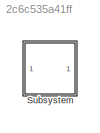
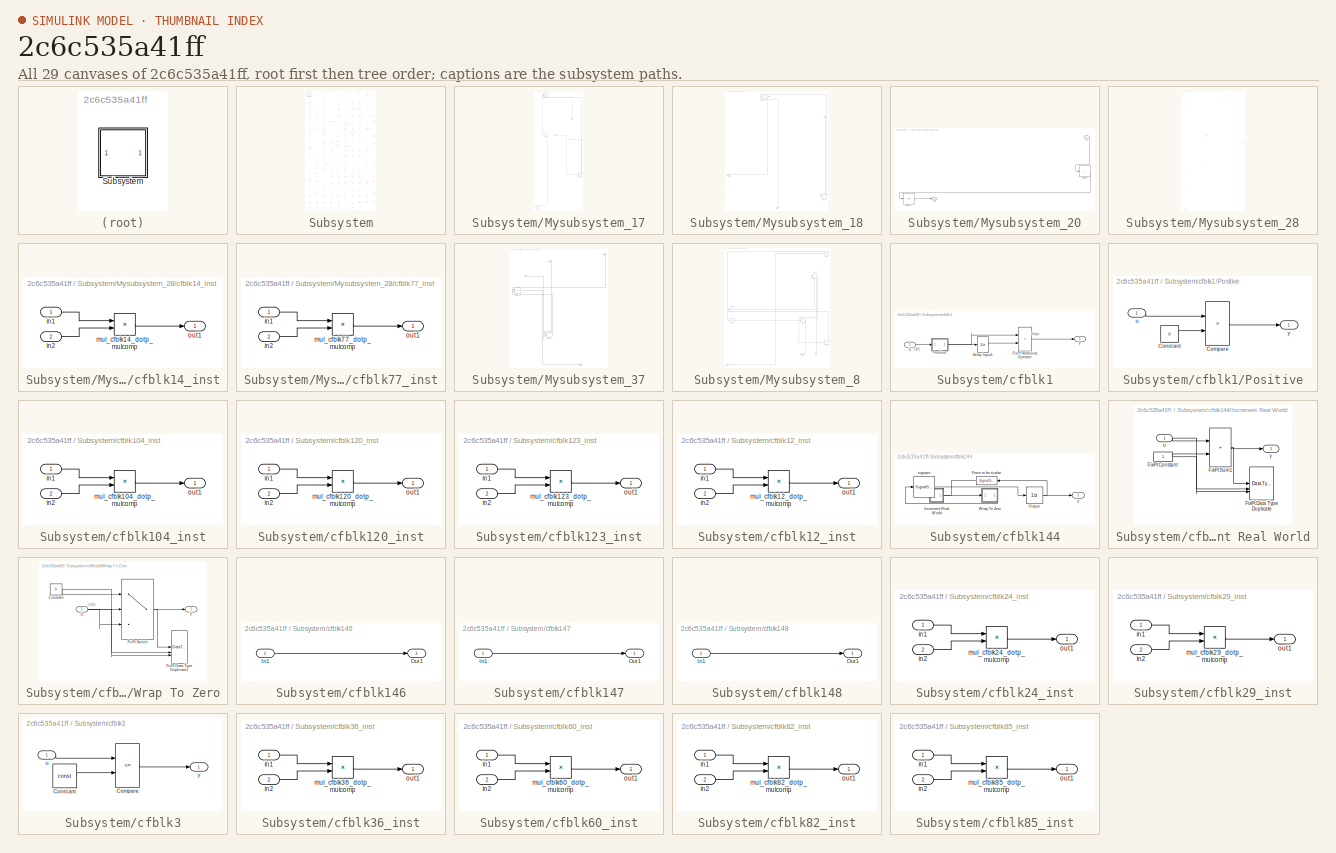
[diagram: thumbnail index - all 29 canvases of the model, root first then tree order]
MODEL slx_2c6c535a41ff
KIND model
CONFIG AbsTol = auto
CONFIG EnableMultiTasking = off
CONFIG FixedStep = auto
CONFIG MaxStep = auto
CONFIG MinStep = auto
CONFIG RelTol = 1e-3
CONFIG SampleTimeConstraint = Unconstrained
CONFIG SolverName = VariableStepAuto
CONFIG StartTime = 0.0
CONFIG StopTime = 10.0
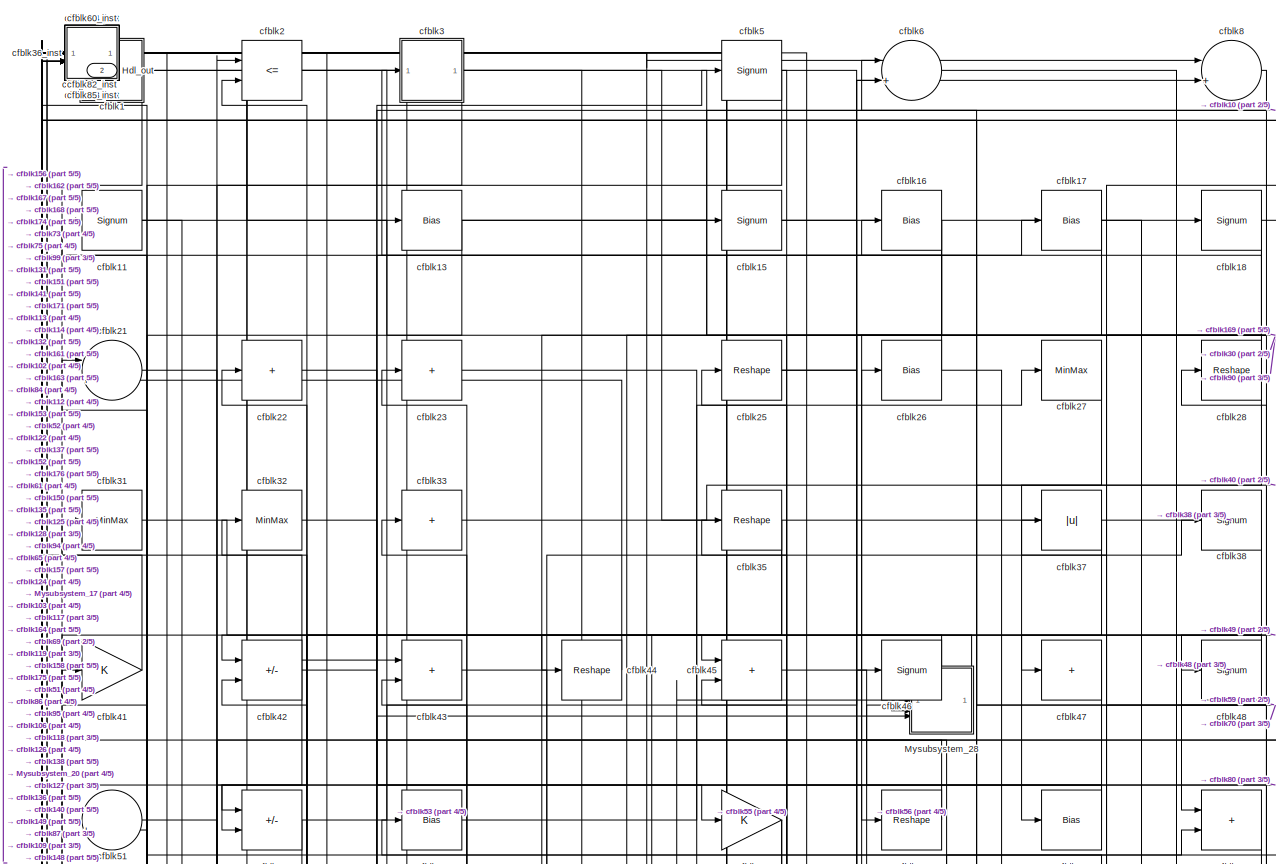
[diagram: Subsystem - part 1/5, full width, top band]
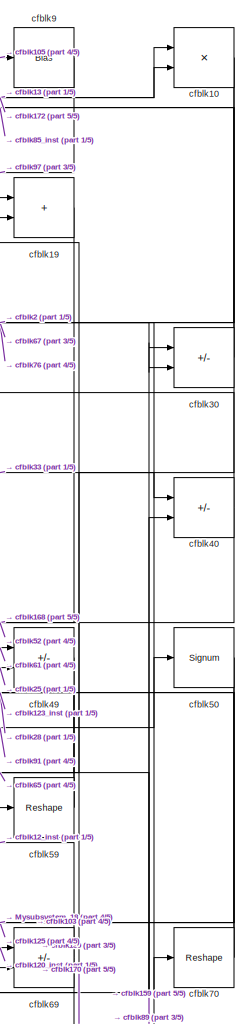
[diagram: Subsystem - part 2/5, top right region]
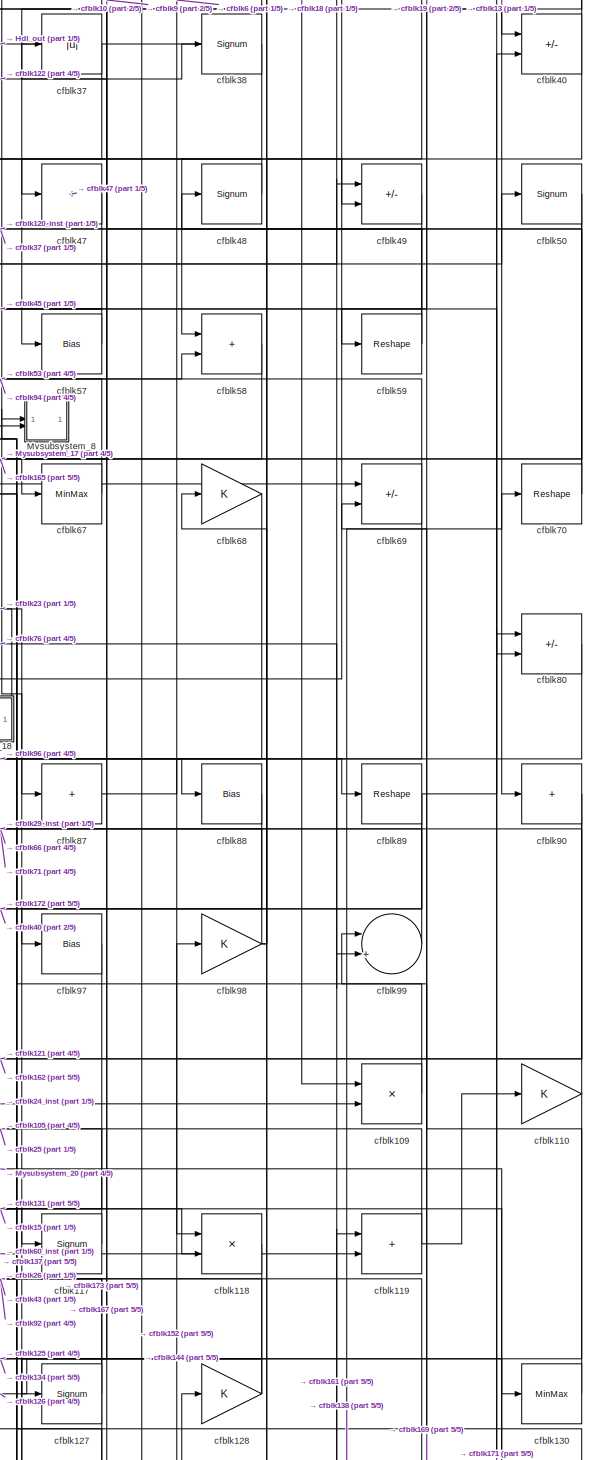
[diagram: Subsystem - part 3/5, middle right region]
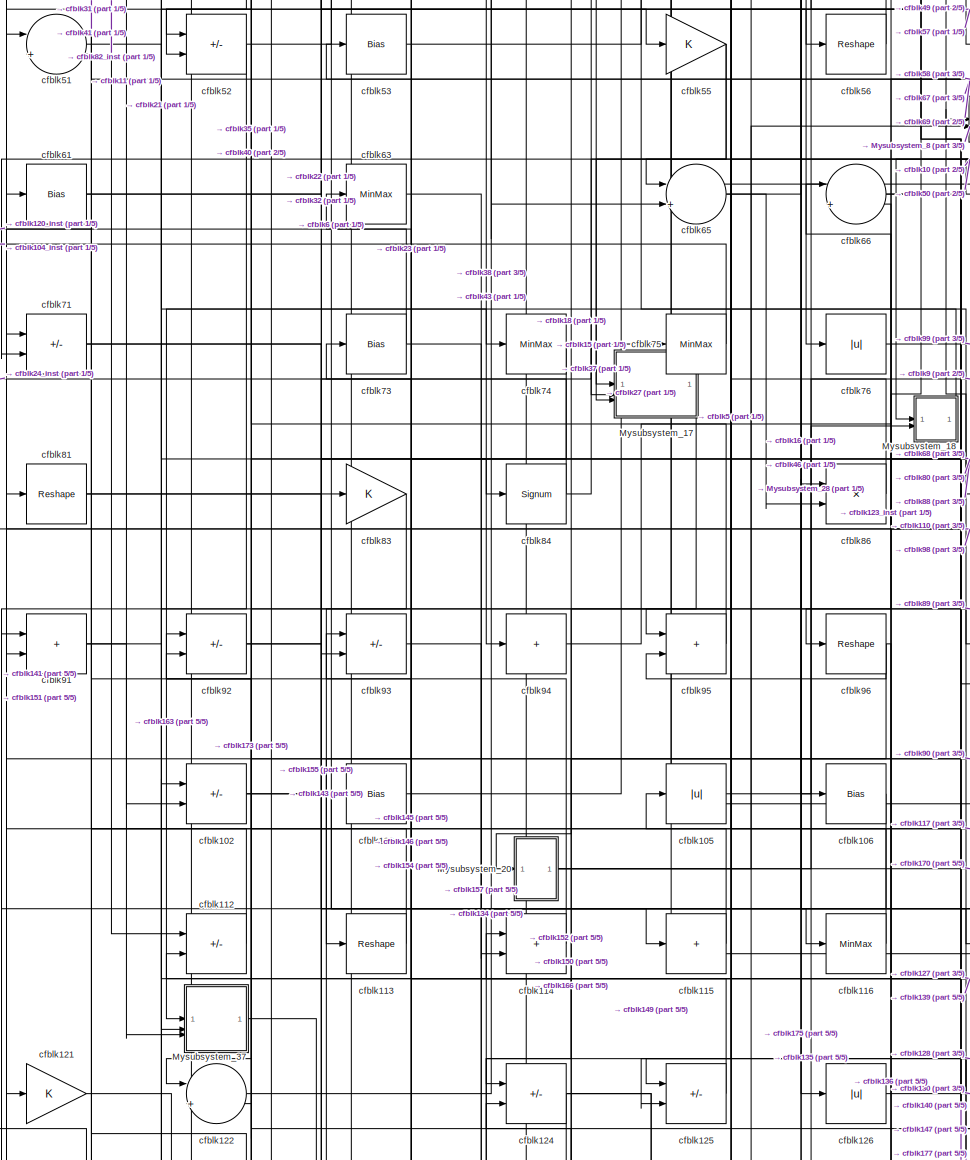
[diagram: Subsystem - part 4/5, central region]
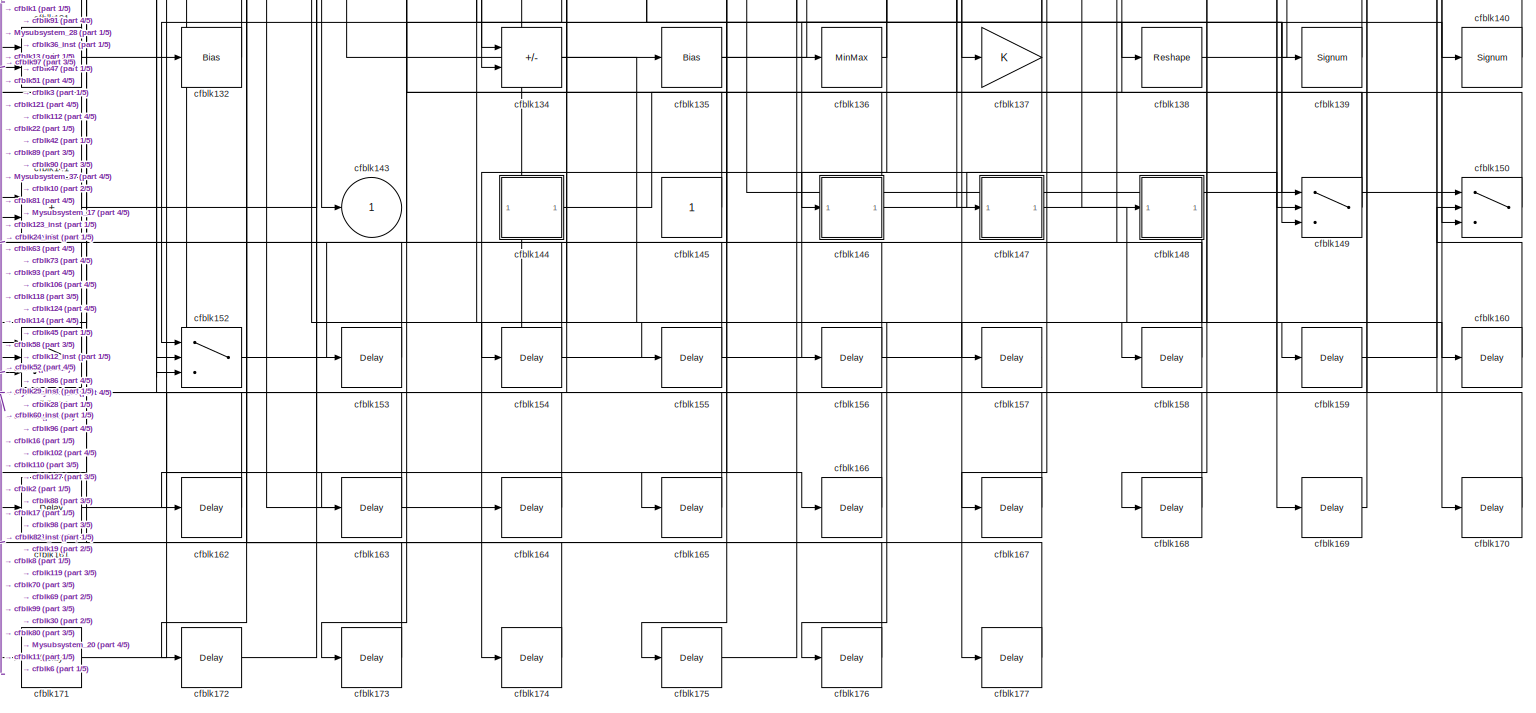
[diagram: Subsystem - part 5/5, full width, bottom band]
BLOCK [SubSystem] Subsystem
BLOCK [Outport] Subsystem/Hdl_out
  OutDataTypeStr = uint8
  Port = 2
  SampleTime = 1
BLOCK [SubSystem] Subsystem/Mysubsystem_17
BLOCK [Inport] Subsystem/Mysubsystem_17/In1
  OutDataTypeStr = uint8
  PortDimensions = 1
  SampleTime = 1
BLOCK [Inport] Subsystem/Mysubsystem_17/In2
  OutDataTypeStr = uint8
  Port = 2
  PortDimensions = 1
  SampleTime = 1
BLOCK [Inport] Subsystem/Mysubsystem_17/In3
  OutDataTypeStr = uint8
  Port = 3
  PortDimensions = 1
  SampleTime = 1
BLOCK [Product] Subsystem/Mysubsystem_17/cfblk108
  Inputs = */
  RndMeth = Zero
  SaturateOnIntegerOverflow = on
BLOCK [Outport] Subsystem/Mysubsystem_17/cfblk143
  SampleTime = 1
  VectorParamsAs1DForOutWhenUnconnected = off
BLOCK [Sum] Subsystem/Mysubsystem_17/cfblk4
  IconShape = rectangular
  Inputs = +-
BLOCK [Abs] Subsystem/Mysubsystem_17/cfblk54
  SaturateOnIntegerOverflow = off
BLOCK [SubSystem] Subsystem/Mysubsystem_18
BLOCK [Inport] Subsystem/Mysubsystem_18/In1
  OutDataTypeStr = uint8
  PortDimensions = 1
  SampleTime = 1
BLOCK [Inport] Subsystem/Mysubsystem_18/In2
  OutDataTypeStr = uint8
  Port = 2
  PortDimensions = 1
  SampleTime = 1
BLOCK [Outport] Subsystem/Mysubsystem_18/Out1
  SampleTime = 1
BLOCK [Sum] Subsystem/Mysubsystem_18/cfblk129
  IconShape = rectangular
  Inputs = +
BLOCK [Sum] Subsystem/Mysubsystem_18/cfblk34
  Inputs = |++
BLOCK [SubSystem] Subsystem/Mysubsystem_20
BLOCK [Inport] Subsystem/Mysubsystem_20/In1
  OutDataTypeStr = uint8
  PortDimensions = 1
  SampleTime = 1
BLOCK [Outport] Subsystem/Mysubsystem_20/Out1
  SampleTime = 1
BLOCK [Sum] Subsystem/Mysubsystem_20/cfblk107
  IconShape = rectangular
  Inputs = +
BLOCK [Abs] Subsystem/Mysubsystem_20/cfblk111
  SaturateOnIntegerOverflow = off
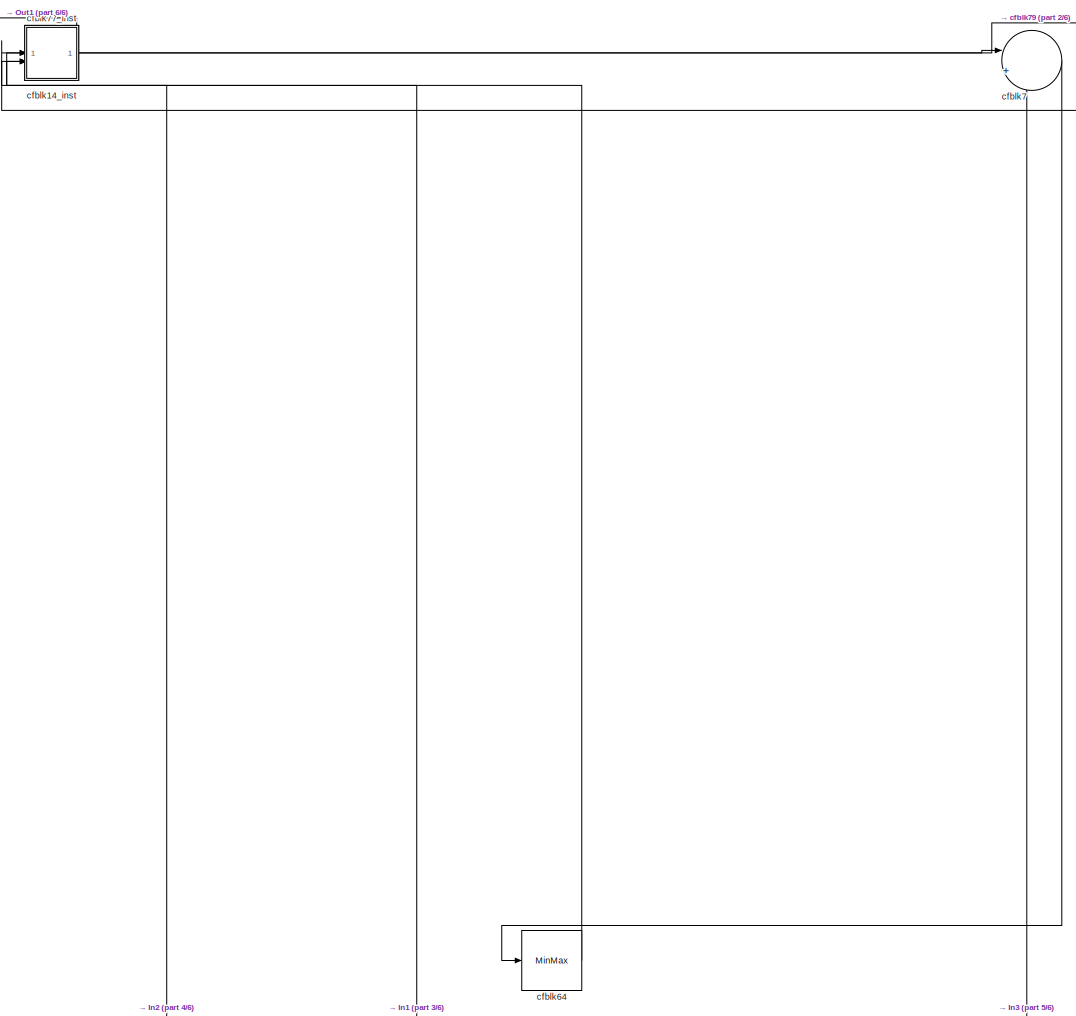
[diagram: Subsystem/Mysubsystem_28 - part 1/6, full width, top band]
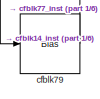
[diagram: Subsystem/Mysubsystem_28 - part 2/6, middle right region]
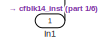
[diagram: Subsystem/Mysubsystem_28 - part 3/6, middle left region]
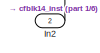
[diagram: Subsystem/Mysubsystem_28 - part 4/6, middle left region]
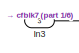
[diagram: Subsystem/Mysubsystem_28 - part 5/6, bottom left region]
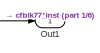
[diagram: Subsystem/Mysubsystem_28 - part 6/6, bottom left region]
BLOCK [SubSystem] Subsystem/Mysubsystem_28
BLOCK [Inport] Subsystem/Mysubsystem_28/In1
  OutDataTypeStr = uint8
  PortDimensions = 1
  SampleTime = 1
BLOCK [Inport] Subsystem/Mysubsystem_28/In2
  OutDataTypeStr = uint8
  Port = 2
  PortDimensions = 1
  SampleTime = 1
BLOCK [Inport] Subsystem/Mysubsystem_28/In3
  OutDataTypeStr = uint8
  Port = 3
  PortDimensions = 1
  SampleTime = 1
BLOCK [Outport] Subsystem/Mysubsystem_28/Out1
  SampleTime = 1
BLOCK [SubSystem] Subsystem/Mysubsystem_28/cfblk14_inst
BLOCK [Inport] Subsystem/Mysubsystem_28/cfblk14_inst/in1
  OutDataTypeStr = uint8
  SampleTime = 1
BLOCK [Inport] Subsystem/Mysubsystem_28/cfblk14_inst/in2
  OutDataTypeStr = uint8
  Port = 2
  SampleTime = 1
BLOCK [Product] Subsystem/Mysubsystem_28/cfblk14_inst/mul_cfblk14_dotp_mulcomp
  Inputs = **
  OutDataTypeStr = uint16
  SampleTime = 1
BLOCK [Outport] Subsystem/Mysubsystem_28/cfblk14_inst/out1
  OutDataTypeStr = uint16
  SampleTime = 1
BLOCK [MinMax] Subsystem/Mysubsystem_28/cfblk64
BLOCK [Sum] Subsystem/Mysubsystem_28/cfblk7
  Inputs = |++
BLOCK [SubSystem] Subsystem/Mysubsystem_28/cfblk77_inst
BLOCK [Inport] Subsystem/Mysubsystem_28/cfblk77_inst/in1
  OutDataTypeStr = uint16
  SampleTime = 1
BLOCK [Inport] Subsystem/Mysubsystem_28/cfblk77_inst/in2
  OutDataTypeStr = uint16
  Port = 2
  SampleTime = 1
BLOCK [Product] Subsystem/Mysubsystem_28/cfblk77_inst/mul_cfblk77_dotp_mulcomp
  Inputs = **
  OutDataTypeStr = uint32
  SampleTime = 1
BLOCK [Outport] Subsystem/Mysubsystem_28/cfblk77_inst/out1
  OutDataTypeStr = uint32
  SampleTime = 1
BLOCK [Bias] Subsystem/Mysubsystem_28/cfblk79
  Bias = 0.0
  SaturateOnIntegerOverflow = off
BLOCK [SubSystem] Subsystem/Mysubsystem_37
BLOCK [Inport] Subsystem/Mysubsystem_37/In1
  OutDataTypeStr = uint8
  PortDimensions = 1
  SampleTime = 1
BLOCK [Inport] Subsystem/Mysubsystem_37/In2
  OutDataTypeStr = uint8
  Port = 2
  PortDimensions = 1
  SampleTime = 1
BLOCK [Inport] Subsystem/Mysubsystem_37/In3
  OutDataTypeStr = uint8
  Port = 3
  PortDimensions = 1
  SampleTime = 1
BLOCK [Outport] Subsystem/Mysubsystem_37/Out1
  SampleTime = 1
BLOCK [Sum] Subsystem/Mysubsystem_37/cfblk101
  IconShape = rectangular
  Inputs = +-
BLOCK [Sum] Subsystem/Mysubsystem_37/cfblk133
  Inputs = |++
BLOCK [SubSystem] Subsystem/Mysubsystem_8
BLOCK [Inport] Subsystem/Mysubsystem_8/In1
  OutDataTypeStr = uint8
  PortDimensions = 1
  SampleTime = 1
BLOCK [Inport] Subsystem/Mysubsystem_8/In2
  OutDataTypeStr = uint8
  Port = 2
  PortDimensions = 1
  SampleTime = 1
BLOCK [Outport] Subsystem/Mysubsystem_8/Out1
  SampleTime = 1
BLOCK [Abs] Subsystem/Mysubsystem_8/cfblk100
  SaturateOnIntegerOverflow = off
BLOCK [Abs] Subsystem/Mysubsystem_8/cfblk20
  SaturateOnIntegerOverflow = off
BLOCK [Sum] Subsystem/Mysubsystem_8/cfblk39
  Inputs = |++
BLOCK [Abs] Subsystem/Mysubsystem_8/cfblk62
  SaturateOnIntegerOverflow = off
BLOCK [Bias] Subsystem/Mysubsystem_8/cfblk72
  Bias = 0.0
  SaturateOnIntegerOverflow = off
BLOCK [Sum] Subsystem/Mysubsystem_8/cfblk78
  IconShape = rectangular
  Inputs = +
BLOCK [SubSystem] Subsystem/cfblk1
BLOCK [UnitDelay] Subsystem/cfblk1/Delay Input1
  Description = Store in Global RAM
  DisableCoverage = on
  HasFrameUpgradeWarning = on
  InitialCondition = vinit
  SampleTime = -1
BLOCK [RelationalOperator] Subsystem/cfblk1/FixPt Relational Operator
  InputSameDT = off
  Operator = >
  OutDataTypeStr = fixdt(0, 8)
  ZeroCross = off
BLOCK [SubSystem] Subsystem/cfblk1/Positive
BLOCK [RelationalOperator] Subsystem/cfblk1/Positive/Compare
  Operator = >
  OutDataTypeStr = boolean
  ZeroCross = off
BLOCK [Constant] Subsystem/cfblk1/Positive/Constant
  DisableCoverage = on
  OutDataTypeStr = Inherit: Inherit via back propagation
  PreserveConstantTs = on
  SampleTime = -1
  Value = 0
BLOCK [Inport] Subsystem/cfblk1/Positive/u
  OutDataTypeStr = uint8
  SampleTime = 1
BLOCK [Outport] Subsystem/cfblk1/Positive/y
  SampleTime = 1
BLOCK [Inport] Subsystem/cfblk1/U
  OutDataTypeStr = uint8
  SampleTime = 1
BLOCK [Outport] Subsystem/cfblk1/Y
  SampleTime = 1
BLOCK [Product] Subsystem/cfblk10
  Inputs = */
  OutDataTypeStr = uint8
  RndMeth = Zero
  SaturateOnIntegerOverflow = on
BLOCK [Sum] Subsystem/cfblk102
  IconShape = rectangular
  Inputs = +-
  OutDataTypeStr = uint8
BLOCK [Bias] Subsystem/cfblk103
  Bias = 0.0
  SaturateOnIntegerOverflow = off
BLOCK [SubSystem] Subsystem/cfblk104_inst
BLOCK [Inport] Subsystem/cfblk104_inst/in1
  OutDataTypeStr = uint8
  SampleTime = 1
BLOCK [Inport] Subsystem/cfblk104_inst/in2
  OutDataTypeStr = uint8
  Port = 2
  SampleTime = 1
BLOCK [Product] Subsystem/cfblk104_inst/mul_cfblk104_dotp_mulcomp
  Inputs = **
  OutDataTypeStr = uint8
  SampleTime = 1
BLOCK [Outport] Subsystem/cfblk104_inst/out1
  OutDataTypeStr = uint8
  SampleTime = 1
BLOCK [Abs] Subsystem/cfblk105
  OutDataTypeStr = uint8
  SaturateOnIntegerOverflow = off
BLOCK [Bias] Subsystem/cfblk106
  Bias = 0.0
  SaturateOnIntegerOverflow = off
BLOCK [Product] Subsystem/cfblk109
  Inputs = */
  OutDataTypeStr = uint8
  RndMeth = Zero
  SaturateOnIntegerOverflow = on
BLOCK [Signum] Subsystem/cfblk11
BLOCK [Gain] Subsystem/cfblk110
  OutDataTypeStr = uint8
BLOCK [Sum] Subsystem/cfblk112
  IconShape = rectangular
  Inputs = +-
  OutDataTypeStr = uint8
BLOCK [Reshape] Subsystem/cfblk113
BLOCK [Sum] Subsystem/cfblk114
  IconShape = rectangular
  OutDataTypeStr = uint8
BLOCK [Sum] Subsystem/cfblk115
  IconShape = rectangular
  Inputs = +
  OutDataTypeStr = uint8
BLOCK [MinMax] Subsystem/cfblk116
  OutDataTypeStr = uint8
BLOCK [Signum] Subsystem/cfblk117
BLOCK [Product] Subsystem/cfblk118
  Inputs = */
  OutDataTypeStr = uint8
  RndMeth = Zero
  SaturateOnIntegerOverflow = on
BLOCK [Sum] Subsystem/cfblk119
  IconShape = rectangular
  OutDataTypeStr = uint8
BLOCK [SubSystem] Subsystem/cfblk120_inst
BLOCK [Inport] Subsystem/cfblk120_inst/in1
  OutDataTypeStr = uint8
  SampleTime = 1
BLOCK [Inport] Subsystem/cfblk120_inst/in2
  OutDataTypeStr = uint8
  Port = 2
  SampleTime = 1
BLOCK [Product] Subsystem/cfblk120_inst/mul_cfblk120_dotp_mulcomp
  Inputs = **
  OutDataTypeStr = uint8
  SampleTime = 1
BLOCK [Outport] Subsystem/cfblk120_inst/out1
  OutDataTypeStr = uint8
  SampleTime = 1
BLOCK [Gain] Subsystem/cfblk121
  OutDataTypeStr = uint8
BLOCK [Sum] Subsystem/cfblk122
  Inputs = |++
  OutDataTypeStr = uint8
BLOCK [SubSystem] Subsystem/cfblk123_inst
BLOCK [Inport] Subsystem/cfblk123_inst/in1
  OutDataTypeStr = uint8
  SampleTime = 1
BLOCK [Inport] Subsystem/cfblk123_inst/in2
  OutDataTypeStr = uint8
  Port = 2
  SampleTime = 1
BLOCK [Product] Subsystem/cfblk123_inst/mul_cfblk123_dotp_mulcomp
  Inputs = **
  OutDataTypeStr = uint8
  SampleTime = 1
BLOCK [Outport] Subsystem/cfblk123_inst/out1
  OutDataTypeStr = uint8
  SampleTime = 1
BLOCK [Sum] Subsystem/cfblk124
  IconShape = rectangular
  Inputs = +-
  OutDataTypeStr = uint8
BLOCK [Sum] Subsystem/cfblk125
  IconShape = rectangular
  Inputs = +-
  OutDataTypeStr = uint8
BLOCK [Abs] Subsystem/cfblk126
  OutDataTypeStr = uint8
  SaturateOnIntegerOverflow = off
BLOCK [Signum] Subsystem/cfblk127
BLOCK [Gain] Subsystem/cfblk128
  OutDataTypeStr = uint8
BLOCK [SubSystem] Subsystem/cfblk12_inst
BLOCK [Inport] Subsystem/cfblk12_inst/in1
  OutDataTypeStr = uint8
  SampleTime = 1
BLOCK [Inport] Subsystem/cfblk12_inst/in2
  OutDataTypeStr = uint8
  Port = 2
  SampleTime = 1
BLOCK [Product] Subsystem/cfblk12_inst/mul_cfblk12_dotp_mulcomp
  Inputs = **
  OutDataTypeStr = uint8
  SampleTime = 1
BLOCK [Outport] Subsystem/cfblk12_inst/out1
  OutDataTypeStr = uint8
  SampleTime = 1
BLOCK [Bias] Subsystem/cfblk13
  Bias = 0.0
  SaturateOnIntegerOverflow = off
BLOCK [MinMax] Subsystem/cfblk130
  OutDataTypeStr = uint8
BLOCK [Sum] Subsystem/cfblk131
  IconShape = rectangular
  Inputs = +-
  OutDataTypeStr = uint8
BLOCK [Bias] Subsystem/cfblk132
  Bias = 0.0
  SaturateOnIntegerOverflow = off
BLOCK [Sum] Subsystem/cfblk134
  IconShape = rectangular
  Inputs = +-
  OutDataTypeStr = uint8
BLOCK [Bias] Subsystem/cfblk135
  Bias = 0.0
  SaturateOnIntegerOverflow = off
BLOCK [MinMax] Subsystem/cfblk136
  OutDataTypeStr = uint8
BLOCK [Gain] Subsystem/cfblk137
  OutDataTypeStr = uint8
BLOCK [Reshape] Subsystem/cfblk138
BLOCK [Signum] Subsystem/cfblk139
BLOCK [Signum] Subsystem/cfblk140
BLOCK [Sum] Subsystem/cfblk141
  IconShape = rectangular
  OutDataTypeStr = uint8
BLOCK [Outport] Subsystem/cfblk143
  OutDataTypeStr = uint8
  SampleTime = 1
  VectorParamsAs1DForOutWhenUnconnected = off
BLOCK [SubSystem] Subsystem/cfblk144
BLOCK [SignalSpecification] Subsystem/cfblk144/Force to be scalar
  Dimensions = 1
  DisableCoverage = on
BLOCK [SubSystem] Subsystem/cfblk144/Increment Real World
BLOCK [Constant] Subsystem/cfblk144/Increment Real World/FixPt Constant
  DisableCoverage = on
  OutDataTypeStr = Inherit: Inherit via back propagation
  SampleTime = -1
BLOCK [DataTypeDuplicate] Subsystem/cfblk144/Increment Real World/FixPt Data Type Duplicate
  DisableCoverage = on
  NumInputPorts = 3
BLOCK [Sum] Subsystem/cfblk144/Increment Real World/FixPt Sum1
  IconShape = rectangular
  InputSameDT = on
  LockScale = on
  OutDataTypeStr = Inherit: Inherit via back propagation
BLOCK [Inport] Subsystem/cfblk144/Increment Real World/u
  OutDataTypeStr = uint8
  SampleTime = 1
BLOCK [Outport] Subsystem/cfblk144/Increment Real World/y
  SampleTime = 1
BLOCK [UnitDelay] Subsystem/cfblk144/Output
  HasFrameUpgradeWarning = on
  InitialCondition = 0.0
  SampleTime = tsamp
BLOCK [SubSystem] Subsystem/cfblk144/Wrap To Zero
BLOCK [Constant] Subsystem/cfblk144/Wrap To Zero/Constant
  DisableCoverage = on
  OutDataTypeStr = Inherit: Inherit via back propagation
  SampleTime = -1
  Value = 0
BLOCK [DataTypeDuplicate] Subsystem/cfblk144/Wrap To Zero/FixPt Data Type Duplicate1
  DisableCoverage = on
  NumInputPorts = 3
BLOCK [Switch] Subsystem/cfblk144/Wrap To Zero/FixPt Switch
  Criteria = u2 > Threshold
  InputSameDT = off
  OutDataTypeStr = Inherit: Inherit via back propagation
  SaturateOnIntegerOverflow = off
  Threshold = Threshold
  ZeroCross = off
BLOCK [Inport] Subsystem/cfblk144/Wrap To Zero/U
  OutDataTypeStr = uint8
  SampleTime = 1
BLOCK [Outport] Subsystem/cfblk144/Wrap To Zero/Y
  SampleTime = 1
BLOCK [SignalSpecification] Subsystem/cfblk144/sigspec
  Dimensions = 1
  OutDataTypeStr = uint8
BLOCK [Outport] Subsystem/cfblk144/y
  SampleTime = 1
BLOCK [Constant] Subsystem/cfblk145
  OutDataTypeStr = uint8
  SampleTime = -1
BLOCK [SubSystem] Subsystem/cfblk146
BLOCK [Inport] Subsystem/cfblk146/In1
  OutDataTypeStr = uint8
  PortDimensions = 1
  SampleTime = 1
BLOCK [Outport] Subsystem/cfblk146/Out1
  SampleTime = 1
BLOCK [SubSystem] Subsystem/cfblk147
BLOCK [Inport] Subsystem/cfblk147/In1
  OutDataTypeStr = uint8
  PortDimensions = 1
  SampleTime = 1
BLOCK [Outport] Subsystem/cfblk147/Out1
  SampleTime = 1
BLOCK [SubSystem] Subsystem/cfblk148
BLOCK [Inport] Subsystem/cfblk148/In1
  OutDataTypeStr = uint8
  PortDimensions = 1
  SampleTime = 1
BLOCK [Outport] Subsystem/cfblk148/Out1
  SampleTime = 1
BLOCK [Switch] Subsystem/cfblk149
  InputSameDT = off
  OutDataTypeStr = uint8
  SaturateOnIntegerOverflow = off
BLOCK [Signum] Subsystem/cfblk15
BLOCK [Switch] Subsystem/cfblk150
  InputSameDT = off
  OutDataTypeStr = uint8
  SaturateOnIntegerOverflow = off
BLOCK [Switch] Subsystem/cfblk151
  InputSameDT = off
  OutDataTypeStr = uint8
  SaturateOnIntegerOverflow = off
BLOCK [Switch] Subsystem/cfblk152
  InputSameDT = off
  OutDataTypeStr = uint8
  SaturateOnIntegerOverflow = off
BLOCK [Delay] Subsystem/cfblk153
  InputPortMap = u0
  SampleTime = 1
BLOCK [Delay] Subsystem/cfblk154
  InputPortMap = u0
  SampleTime = 1
BLOCK [Delay] Subsystem/cfblk155
  InputPortMap = u0
  SampleTime = 1
BLOCK [Delay] Subsystem/cfblk156
  InputPortMap = u0
  SampleTime = 1
BLOCK [Delay] Subsystem/cfblk157
  InputPortMap = u0
  SampleTime = 1
BLOCK [Delay] Subsystem/cfblk158
  InputPortMap = u0
  SampleTime = 1
BLOCK [Delay] Subsystem/cfblk159
  InputPortMap = u0
  SampleTime = 1
BLOCK [Bias] Subsystem/cfblk16
  Bias = 0.0
  SaturateOnIntegerOverflow = off
BLOCK [Delay] Subsystem/cfblk160
  InputPortMap = u0
  SampleTime = 1
BLOCK [Delay] Subsystem/cfblk161
  InputPortMap = u0
  SampleTime = 1
BLOCK [Delay] Subsystem/cfblk162
  InputPortMap = u0
  SampleTime = 1
BLOCK [Delay] Subsystem/cfblk163
  InputPortMap = u0
  SampleTime = 1
BLOCK [Delay] Subsystem/cfblk164
  InputPortMap = u0
  SampleTime = 1
BLOCK [Delay] Subsystem/cfblk165
  InputPortMap = u0
  SampleTime = 1
BLOCK [Delay] Subsystem/cfblk166
  InputPortMap = u0
  SampleTime = 1
BLOCK [Delay] Subsystem/cfblk167
  InputPortMap = u0
  SampleTime = 1
BLOCK [Delay] Subsystem/cfblk168
  InputPortMap = u0
  SampleTime = 1
BLOCK [Delay] Subsystem/cfblk169
  InputPortMap = u0
  SampleTime = 1
BLOCK [Bias] Subsystem/cfblk17
  Bias = 0.0
  SaturateOnIntegerOverflow = off
BLOCK [Delay] Subsystem/cfblk170
  InputPortMap = u0
  SampleTime = 1
BLOCK [Delay] Subsystem/cfblk171
  InputPortMap = u0
  SampleTime = 1
BLOCK [Delay] Subsystem/cfblk172
  InputPortMap = u0
  SampleTime = 1
BLOCK [Delay] Subsystem/cfblk173
  InputPortMap = u0
  SampleTime = 1
BLOCK [Delay] Subsystem/cfblk174
  InputPortMap = u0
  SampleTime = 1
BLOCK [Delay] Subsystem/cfblk175
  InputPortMap = u0
  SampleTime = 1
BLOCK [Delay] Subsystem/cfblk176
  InputPortMap = u0
  SampleTime = 1
BLOCK [Delay] Subsystem/cfblk177
  InputPortMap = u0
  SampleTime = 1
BLOCK [Signum] Subsystem/cfblk18
BLOCK [Sum] Subsystem/cfblk19
  IconShape = rectangular
  OutDataTypeStr = uint8
BLOCK [RelationalOperator] Subsystem/cfblk2
  InputSameDT = off
  Operator = <=
  OutDataTypeStr = boolean
BLOCK [Sum] Subsystem/cfblk21
  Inputs = |++
  OutDataTypeStr = uint8
BLOCK [Sum] Subsystem/cfblk22
  IconShape = rectangular
  Inputs = +
  OutDataTypeStr = uint8
BLOCK [Sum] Subsystem/cfblk23
  IconShape = rectangular
  Inputs = +
  OutDataTypeStr = uint8
BLOCK [SubSystem] Subsystem/cfblk24_inst
BLOCK [Inport] Subsystem/cfblk24_inst/in1
  OutDataTypeStr = uint8
  SampleTime = 1
BLOCK [Inport] Subsystem/cfblk24_inst/in2
  OutDataTypeStr = uint8
  Port = 2
  SampleTime = 1
BLOCK [Product] Subsystem/cfblk24_inst/mul_cfblk24_dotp_mulcomp
  Inputs = **
  OutDataTypeStr = uint8
  SampleTime = 1
BLOCK [Outport] Subsystem/cfblk24_inst/out1
  OutDataTypeStr = uint8
  SampleTime = 1
BLOCK [Reshape] Subsystem/cfblk25
BLOCK [Bias] Subsystem/cfblk26
  Bias = 0.0
  SaturateOnIntegerOverflow = off
BLOCK [MinMax] Subsystem/cfblk27
  OutDataTypeStr = uint8
BLOCK [Reshape] Subsystem/cfblk28
BLOCK [SubSystem] Subsystem/cfblk29_inst
BLOCK [Inport] Subsystem/cfblk29_inst/in1
  OutDataTypeStr = uint8
  SampleTime = 1
BLOCK [Inport] Subsystem/cfblk29_inst/in2
  OutDataTypeStr = uint8
  Port = 2
  SampleTime = 1
BLOCK [Product] Subsystem/cfblk29_inst/mul_cfblk29_dotp_mulcomp
  Inputs = **
  OutDataTypeStr = uint8
  SampleTime = 1
BLOCK [Outport] Subsystem/cfblk29_inst/out1
  OutDataTypeStr = uint8
  SampleTime = 1
BLOCK [SubSystem] Subsystem/cfblk3
BLOCK [RelationalOperator] Subsystem/cfblk3/Compare
  Operator = <=
  OutDataTypeStr = fixdt(0, 8)
BLOCK [Constant] Subsystem/cfblk3/Constant
  DisableCoverage = on
  OutDataTypeStr = Inherit: Inherit via back propagation
  SampleTime = -1
  Value = const
BLOCK [Inport] Subsystem/cfblk3/u
  OutDataTypeStr = uint8
  SampleTime = 1
BLOCK [Outport] Subsystem/cfblk3/y
  SampleTime = 1
BLOCK [Sum] Subsystem/cfblk30
  IconShape = rectangular
  Inputs = +-
  OutDataTypeStr = uint8
BLOCK [MinMax] Subsystem/cfblk31
  OutDataTypeStr = uint8
BLOCK [MinMax] Subsystem/cfblk32
  OutDataTypeStr = uint8
BLOCK [Sum] Subsystem/cfblk33
  IconShape = rectangular
  Inputs = +
  OutDataTypeStr = uint8
BLOCK [Reshape] Subsystem/cfblk35
BLOCK [SubSystem] Subsystem/cfblk36_inst
BLOCK [Inport] Subsystem/cfblk36_inst/in1
  OutDataTypeStr = uint8
  SampleTime = 1
BLOCK [Inport] Subsystem/cfblk36_inst/in2
  OutDataTypeStr = uint8
  Port = 2
  SampleTime = 1
BLOCK [Product] Subsystem/cfblk36_inst/mul_cfblk36_dotp_mulcomp
  Inputs = **
  OutDataTypeStr = uint8
  SampleTime = 1
BLOCK [Outport] Subsystem/cfblk36_inst/out1
  OutDataTypeStr = uint8
  SampleTime = 1
BLOCK [Abs] Subsystem/cfblk37
  OutDataTypeStr = uint8
  SaturateOnIntegerOverflow = off
BLOCK [Signum] Subsystem/cfblk38
BLOCK [Sum] Subsystem/cfblk40
  IconShape = rectangular
  Inputs = +-
  OutDataTypeStr = uint8
BLOCK [Gain] Subsystem/cfblk41
  OutDataTypeStr = uint8
BLOCK [Sum] Subsystem/cfblk42
  IconShape = rectangular
  Inputs = +-
  OutDataTypeStr = uint8
BLOCK [Sum] Subsystem/cfblk43
  IconShape = rectangular
  OutDataTypeStr = uint8
BLOCK [Reshape] Subsystem/cfblk44
BLOCK [Sum] Subsystem/cfblk45
  IconShape = rectangular
  OutDataTypeStr = uint8
BLOCK [Signum] Subsystem/cfblk46
BLOCK [Sum] Subsystem/cfblk47
  IconShape = rectangular
  Inputs = +
  OutDataTypeStr = uint8
BLOCK [Signum] Subsystem/cfblk48
BLOCK [Sum] Subsystem/cfblk49
  IconShape = rectangular
  Inputs = +-
  OutDataTypeStr = uint8
BLOCK [Signum] Subsystem/cfblk5
BLOCK [Signum] Subsystem/cfblk50
BLOCK [Sum] Subsystem/cfblk51
  Inputs = |++
  OutDataTypeStr = uint8
BLOCK [Sum] Subsystem/cfblk52
  IconShape = rectangular
  Inputs = +-
  OutDataTypeStr = uint8
BLOCK [Bias] Subsystem/cfblk53
  Bias = 0.0
  SaturateOnIntegerOverflow = off
BLOCK [Gain] Subsystem/cfblk55
  OutDataTypeStr = uint8
BLOCK [Reshape] Subsystem/cfblk56
BLOCK [Bias] Subsystem/cfblk57
  Bias = 0.0
  SaturateOnIntegerOverflow = off
BLOCK [Sum] Subsystem/cfblk58
  IconShape = rectangular
  OutDataTypeStr = uint8
BLOCK [Reshape] Subsystem/cfblk59
BLOCK [Sum] Subsystem/cfblk6
  Inputs = |++
  OutDataTypeStr = uint8
BLOCK [SubSystem] Subsystem/cfblk60_inst
BLOCK [Inport] Subsystem/cfblk60_inst/in1
  OutDataTypeStr = uint8
  SampleTime = 1
BLOCK [Inport] Subsystem/cfblk60_inst/in2
  OutDataTypeStr = uint8
  Port = 2
  SampleTime = 1
BLOCK [Product] Subsystem/cfblk60_inst/mul_cfblk60_dotp_mulcomp
  Inputs = **
  OutDataTypeStr = uint8
  SampleTime = 1
BLOCK [Outport] Subsystem/cfblk60_inst/out1
  OutDataTypeStr = uint8
  SampleTime = 1
BLOCK [Bias] Subsystem/cfblk61
  Bias = 0.0
  SaturateOnIntegerOverflow = off
BLOCK [MinMax] Subsystem/cfblk63
  OutDataTypeStr = uint8
BLOCK [Sum] Subsystem/cfblk65
  Inputs = |++
  OutDataTypeStr = uint8
BLOCK [Sum] Subsystem/cfblk66
  Inputs = |++
  OutDataTypeStr = uint8
BLOCK [MinMax] Subsystem/cfblk67
  OutDataTypeStr = uint8
BLOCK [Gain] Subsystem/cfblk68
  OutDataTypeStr = uint8
BLOCK [Sum] Subsystem/cfblk69
  IconShape = rectangular
  Inputs = +-
  OutDataTypeStr = uint8
BLOCK [Reshape] Subsystem/cfblk70
BLOCK [Sum] Subsystem/cfblk71
  IconShape = rectangular
  Inputs = +-
  OutDataTypeStr = uint8
BLOCK [Bias] Subsystem/cfblk73
  Bias = 0.0
  SaturateOnIntegerOverflow = off
BLOCK [MinMax] Subsystem/cfblk74
  OutDataTypeStr = uint8
BLOCK [MinMax] Subsystem/cfblk75
  OutDataTypeStr = uint8
BLOCK [Abs] Subsystem/cfblk76
  OutDataTypeStr = uint8
  SaturateOnIntegerOverflow = off
BLOCK [Sum] Subsystem/cfblk8
  Inputs = |++
  OutDataTypeStr = uint8
BLOCK [Sum] Subsystem/cfblk80
  IconShape = rectangular
  Inputs = +-
  OutDataTypeStr = uint8
BLOCK [Reshape] Subsystem/cfblk81
BLOCK [SubSystem] Subsystem/cfblk82_inst
BLOCK [Inport] Subsystem/cfblk82_inst/in1
  OutDataTypeStr = uint8
  SampleTime = 1
BLOCK [Inport] Subsystem/cfblk82_inst/in2
  OutDataTypeStr = uint8
  Port = 2
  SampleTime = 1
BLOCK [Product] Subsystem/cfblk82_inst/mul_cfblk82_dotp_mulcomp
  Inputs = **
  OutDataTypeStr = uint8
  SampleTime = 1
BLOCK [Outport] Subsystem/cfblk82_inst/out1
  OutDataTypeStr = uint8
  SampleTime = 1
BLOCK [Gain] Subsystem/cfblk83
  OutDataTypeStr = uint8
BLOCK [Signum] Subsystem/cfblk84
BLOCK [SubSystem] Subsystem/cfblk85_inst
BLOCK [Inport] Subsystem/cfblk85_inst/in1
  OutDataTypeStr = uint8
  SampleTime = 1
BLOCK [Inport] Subsystem/cfblk85_inst/in2
  OutDataTypeStr = uint8
  Port = 2
  SampleTime = 1
BLOCK [Product] Subsystem/cfblk85_inst/mul_cfblk85_dotp_mulcomp
  Inputs = **
  OutDataTypeStr = uint8
  SampleTime = 1
BLOCK [Outport] Subsystem/cfblk85_inst/out1
  OutDataTypeStr = uint8
  SampleTime = 1
BLOCK [Product] Subsystem/cfblk86
  Inputs = */
  OutDataTypeStr = uint8
  RndMeth = Zero
  SaturateOnIntegerOverflow = on
BLOCK [Sum] Subsystem/cfblk87
  IconShape = rectangular
  Inputs = +
  OutDataTypeStr = uint8
BLOCK [Bias] Subsystem/cfblk88
  Bias = 0.0
  SaturateOnIntegerOverflow = off
BLOCK [Reshape] Subsystem/cfblk89
BLOCK [Bias] Subsystem/cfblk9
  Bias = 0.0
  SaturateOnIntegerOverflow = off
BLOCK [Sum] Subsystem/cfblk90
  IconShape = rectangular
  Inputs = +
  OutDataTypeStr = uint8
BLOCK [Sum] Subsystem/cfblk91
  IconShape = rectangular
  OutDataTypeStr = uint8
BLOCK [Sum] Subsystem/cfblk92
  IconShape = rectangular
  Inputs = +-
  OutDataTypeStr = uint8
BLOCK [Sum] Subsystem/cfblk93
  IconShape = rectangular
  Inputs = +-
  OutDataTypeStr = uint8
BLOCK [Sum] Subsystem/cfblk94
  IconShape = rectangular
  Inputs = +
  OutDataTypeStr = uint8
BLOCK [Sum] Subsystem/cfblk95
  IconShape = rectangular
  OutDataTypeStr = uint8
BLOCK [Reshape] Subsystem/cfblk96
BLOCK [Bias] Subsystem/cfblk97
  Bias = 0.0
  SaturateOnIntegerOverflow = off
BLOCK [Gain] Subsystem/cfblk98
  OutDataTypeStr = uint8
BLOCK [Sum] Subsystem/cfblk99
  Inputs = |++
  OutDataTypeStr = uint8
ANNOTATION Subsystem/cfblk1: Edge
ANNOTATION Subsystem/cfblk1: U(k)
ANNOTATION Subsystem/cfblk144/Wrap To Zero: U(k)
LINE Subsystem/Mysubsystem_17/In1:1 -> Subsystem/Mysubsystem_17/cfblk4:1
LINE Subsystem/Mysubsystem_17/In2:1 -> Subsystem/Mysubsystem_17/cfblk108:1
LINE Subsystem/Mysubsystem_17/In3:1 -> Subsystem/Mysubsystem_17/cfblk108:2
LINE Subsystem/Mysubsystem_17/cfblk108:1 -> Subsystem/Mysubsystem_17/cfblk4:2
LINE Subsystem/Mysubsystem_17/cfblk4:1 -> Subsystem/Mysubsystem_17/cfblk54:1
LINE Subsystem/Mysubsystem_17/cfblk54:1 -> Subsystem/Mysubsystem_17/cfblk143:1
LINE Subsystem/Mysubsystem_17:1 -> Subsystem/cfblk143:1
LINE Subsystem/Mysubsystem_18/In1:1 -> Subsystem/Mysubsystem_18/cfblk129:1
LINE Subsystem/Mysubsystem_18/In2:1 -> Subsystem/Mysubsystem_18/cfblk34:1
LINE Subsystem/Mysubsystem_18/cfblk129:1 -> Subsystem/Mysubsystem_18/cfblk34:2
LINE Subsystem/Mysubsystem_18/cfblk34:1 -> Subsystem/Mysubsystem_18/Out1:1
LINE Subsystem/Mysubsystem_18:1 -> Subsystem/Mysubsystem_37:1
LINE Subsystem/Mysubsystem_20/In1:1 -> Subsystem/Mysubsystem_20/cfblk107:1
LINE Subsystem/Mysubsystem_20/cfblk107:1 -> Subsystem/Mysubsystem_20/cfblk111:1
LINE Subsystem/Mysubsystem_20/cfblk111:1 -> Subsystem/Mysubsystem_20/Out1:1
NET Subsystem/Mysubsystem_20:1 -> Subsystem/Mysubsystem_28:2, Subsystem/Mysubsystem_8:2, Subsystem/cfblk170:1
LINE Subsystem/Mysubsystem_28/In1:1 -> Subsystem/Mysubsystem_28/cfblk14_inst:1
LINE Subsystem/Mysubsystem_28/In2:1 -> Subsystem/Mysubsystem_28/cfblk14_inst:2
LINE Subsystem/Mysubsystem_28/In3:1 -> Subsystem/Mysubsystem_28/cfblk7:2
LINE Subsystem/Mysubsystem_28/cfblk14_inst/in1:1 -> Subsystem/Mysubsystem_28/cfblk14_inst/mul_cfblk14_dotp_mulcomp:1
LINE Subsystem/Mysubsystem_28/cfblk14_inst/in2:1 -> Subsystem/Mysubsystem_28/cfblk14_inst/mul_cfblk14_dotp_mulcomp:2
LINE Subsystem/Mysubsystem_28/cfblk14_inst/mul_cfblk14_dotp_mulcomp:1 -> Subsystem/Mysubsystem_28/cfblk14_inst/out1:1
NET Subsystem/Mysubsystem_28/cfblk14_inst:1 -> Subsystem/Mysubsystem_28/cfblk79:1, Subsystem/Mysubsystem_28/cfblk7:1
LINE Subsystem/Mysubsystem_28/cfblk64:1 -> Subsystem/Mysubsystem_28/cfblk77_inst:1
LINE Subsystem/Mysubsystem_28/cfblk77_inst/in1:1 -> Subsystem/Mysubsystem_28/cfblk77_inst/mul_cfblk77_dotp_mulcomp:1
LINE Subsystem/Mysubsystem_28/cfblk77_inst/in2:1 -> Subsystem/Mysubsystem_28/cfblk77_inst/mul_cfblk77_dotp_mulcomp:2
LINE Subsystem/Mysubsystem_28/cfblk77_inst/mul_cfblk77_dotp_mulcomp:1 -> Subsystem/Mysubsystem_28/cfblk77_inst/out1:1
LINE Subsystem/Mysubsystem_28/cfblk77_inst:1 -> Subsystem/Mysubsystem_28/Out1:1
LINE Subsystem/Mysubsystem_28/cfblk79:1 -> Subsystem/Mysubsystem_28/cfblk77_inst:2
LINE Subsystem/Mysubsystem_28/cfblk7:1 -> Subsystem/Mysubsystem_28/cfblk64:1
LINE Subsystem/Mysubsystem_28:1 -> Subsystem/cfblk171:1
LINE Subsystem/Mysubsystem_37/In1:1 -> Subsystem/Mysubsystem_37/cfblk101:2
LINE Subsystem/Mysubsystem_37/In2:1 -> Subsystem/Mysubsystem_37/cfblk133:1
LINE Subsystem/Mysubsystem_37/In3:1 -> Subsystem/Mysubsystem_37/cfblk133:2
LINE Subsystem/Mysubsystem_37/cfblk101:1 -> Subsystem/Mysubsystem_37/Out1:1
LINE Subsystem/Mysubsystem_37/cfblk133:1 -> Subsystem/Mysubsystem_37/cfblk101:1
LINE Subsystem/Mysubsystem_37:1 -> Subsystem/cfblk155:1
LINE Subsystem/Mysubsystem_8/In1:1 -> Subsystem/Mysubsystem_8/cfblk39:1
LINE Subsystem/Mysubsystem_8/In2:1 -> Subsystem/Mysubsystem_8/cfblk20:1
LINE Subsystem/Mysubsystem_8/cfblk100:1 -> Subsystem/Mysubsystem_8/cfblk62:1
LINE Subsystem/Mysubsystem_8/cfblk20:1 -> Subsystem/Mysubsystem_8/cfblk72:1
LINE Subsystem/Mysubsystem_8/cfblk39:1 -> Subsystem/Mysubsystem_8/cfblk78:1
LINE Subsystem/Mysubsystem_8/cfblk62:1 -> Subsystem/Mysubsystem_8/cfblk39:2
LINE Subsystem/Mysubsystem_8/cfblk72:1 -> Subsystem/Mysubsystem_8/cfblk100:1
LINE Subsystem/Mysubsystem_8/cfblk78:1 -> Subsystem/Mysubsystem_8/Out1:1
LINE Subsystem/Mysubsystem_8:1 -> Subsystem/Mysubsystem_17:3
NET Subsystem/cfblk102:1 -> Subsystem/cfblk113:1, Subsystem/cfblk177:1
LINE Subsystem/cfblk103:1 -> Subsystem/Mysubsystem_28:1
LINE Subsystem/cfblk104_inst/in1:1 -> Subsystem/cfblk104_inst/mul_cfblk104_dotp_mulcomp:1
LINE Subsystem/cfblk104_inst/in2:1 -> Subsystem/cfblk104_inst/mul_cfblk104_dotp_mulcomp:2
LINE Subsystem/cfblk104_inst/mul_cfblk104_dotp_mulcomp:1 -> Subsystem/cfblk104_inst/out1:1
LINE Subsystem/cfblk104_inst:1 -> Subsystem/cfblk8:1
LINE Subsystem/cfblk105:1 -> Subsystem/cfblk9:1
LINE Subsystem/cfblk106:1 -> Subsystem/cfblk134:2
LINE Subsystem/cfblk109:1 -> Subsystem/Mysubsystem_8:1
NET Subsystem/cfblk10:1 -> Subsystem/cfblk67:1, Subsystem/cfblk76:1
NET Subsystem/cfblk110:1 -> Subsystem/cfblk137:1, Subsystem/cfblk71:1
LINE Subsystem/cfblk112:1 -> Subsystem/cfblk61:1
LINE Subsystem/cfblk113:1 -> Subsystem/cfblk31:1
LINE Subsystem/cfblk114:1 -> Subsystem/cfblk41:1
LINE Subsystem/cfblk115:1 -> Subsystem/cfblk92:1
LINE Subsystem/cfblk116:1 -> Subsystem/cfblk81:1
LINE Subsystem/cfblk117:1 -> Subsystem/cfblk105:1
LINE Subsystem/cfblk118:1 -> Subsystem/cfblk134:1
NET Subsystem/cfblk119:1 -> Subsystem/cfblk110:1, Subsystem/cfblk25:1
NET Subsystem/cfblk11:1 -> Subsystem/cfblk102:2, Subsystem/cfblk150:3
LINE Subsystem/cfblk120_inst/in1:1 -> Subsystem/cfblk120_inst/mul_cfblk120_dotp_mulcomp:1
LINE Subsystem/cfblk120_inst/in2:1 -> Subsystem/cfblk120_inst/mul_cfblk120_dotp_mulcomp:2
LINE Subsystem/cfblk120_inst/mul_cfblk120_dotp_mulcomp:1 -> Subsystem/cfblk120_inst/out1:1
LINE Subsystem/cfblk120_inst:1 -> Subsystem/cfblk69:1
LINE Subsystem/cfblk121:1 -> Subsystem/cfblk163:1
LINE Subsystem/cfblk122:1 -> Subsystem/cfblk38:1
LINE Subsystem/cfblk123_inst/in1:1 -> Subsystem/cfblk123_inst/mul_cfblk123_dotp_mulcomp:1
LINE Subsystem/cfblk123_inst/in2:1 -> Subsystem/cfblk123_inst/mul_cfblk123_dotp_mulcomp:2
LINE Subsystem/cfblk123_inst/mul_cfblk123_dotp_mulcomp:1 -> Subsystem/cfblk123_inst/out1:1
LINE Subsystem/cfblk123_inst:1 -> Subsystem/cfblk135:1
NET Subsystem/cfblk124:1 -> Subsystem/cfblk149:1, Subsystem/cfblk149:3, Subsystem/cfblk152:1
LINE Subsystem/cfblk125:1 -> Subsystem/cfblk23:1
LINE Subsystem/cfblk126:1 -> Subsystem/cfblk130:1
NET Subsystem/cfblk127:1 -> Subsystem/cfblk173:1, Subsystem/cfblk26:1, Subsystem/cfblk92:2
NET Subsystem/cfblk128:1 -> Subsystem/cfblk125:1, Subsystem/cfblk43:2
LINE Subsystem/cfblk12_inst/in1:1 -> Subsystem/cfblk12_inst/mul_cfblk12_dotp_mulcomp:1
LINE Subsystem/cfblk12_inst/in2:1 -> Subsystem/cfblk12_inst/mul_cfblk12_dotp_mulcomp:2
LINE Subsystem/cfblk12_inst/mul_cfblk12_dotp_mulcomp:1 -> Subsystem/cfblk12_inst/out1:1
LINE Subsystem/cfblk12_inst:1 -> Subsystem/cfblk150:1
LINE Subsystem/cfblk130:1 -> Subsystem/cfblk19:1
NET Subsystem/cfblk131:1 -> Subsystem/cfblk132:1, Subsystem/cfblk36_inst:1
LINE Subsystem/cfblk132:1 -> Subsystem/cfblk11:1
LINE Subsystem/cfblk134:1 -> Subsystem/cfblk160:1
NET Subsystem/cfblk135:1 -> Subsystem/Mysubsystem_18:2, Subsystem/cfblk156:1
LINE Subsystem/cfblk136:1 -> Subsystem/cfblk66:1
NET Subsystem/cfblk137:1 -> Subsystem/cfblk174:1, Subsystem/cfblk2:2
LINE Subsystem/cfblk138:1 -> Subsystem/cfblk70:1
LINE Subsystem/cfblk139:1 -> Subsystem/cfblk102:1
NET Subsystem/cfblk13:1 -> Subsystem/cfblk10:1, Subsystem/cfblk161:1, Subsystem/cfblk90:1
LINE Subsystem/cfblk140:1 -> Subsystem/cfblk6:1
NET Subsystem/cfblk141:1 -> Subsystem/Mysubsystem_28:3, Subsystem/cfblk91:2
LINE Subsystem/cfblk144:1 -> Subsystem/cfblk128:1
LINE Subsystem/cfblk145:1 -> Subsystem/cfblk63:1
LINE Subsystem/cfblk146/In1:1 -> Subsystem/cfblk146/Out1:1
NET Subsystem/cfblk146:1 -> Subsystem/cfblk149:2, Subsystem/cfblk73:1
LINE Subsystem/cfblk147/In1:1 -> Subsystem/cfblk147/Out1:1
LINE Subsystem/cfblk147:1 -> Subsystem/cfblk159:1
LINE Subsystem/cfblk148/In1:1 -> Subsystem/cfblk148/Out1:1
LINE Subsystem/cfblk148:1 -> Subsystem/cfblk176:1
NET Subsystem/cfblk149:1 -> Subsystem/cfblk16:1, Subsystem/cfblk33:1
LINE Subsystem/cfblk150:1 -> Subsystem/cfblk114:1
LINE Subsystem/cfblk151:1 -> Subsystem/cfblk24_inst:2
NET Subsystem/cfblk152:1 -> Subsystem/cfblk22:1, Subsystem/cfblk98:1
LINE Subsystem/cfblk153:1 -> Subsystem/cfblk141:2
LINE Subsystem/cfblk154:1 -> Subsystem/cfblk93:1
LINE Subsystem/cfblk155:1 -> Subsystem/cfblk91:1
LINE Subsystem/cfblk156:1 -> Subsystem/cfblk36_inst:2
LINE Subsystem/cfblk157:1 -> Subsystem/cfblk1:1
LINE Subsystem/cfblk158:1 -> Subsystem/cfblk45:2
LINE Subsystem/cfblk159:1 -> Subsystem/cfblk30:1
LINE Subsystem/cfblk15:1 -> Subsystem/cfblk118:2
LINE Subsystem/cfblk160:1 -> Subsystem/cfblk150:2
LINE Subsystem/cfblk161:1 -> Subsystem/cfblk119:1
LINE Subsystem/cfblk162:1 -> Subsystem/cfblk60_inst:2
LINE Subsystem/cfblk163:1 -> Subsystem/cfblk2:1
LINE Subsystem/cfblk164:1 -> Subsystem/cfblk151:2
LINE Subsystem/cfblk165:1 -> Subsystem/cfblk131:1
LINE Subsystem/cfblk166:1 -> Subsystem/cfblk124:2
LINE Subsystem/cfblk167:1 -> Subsystem/cfblk12_inst:2
LINE Subsystem/cfblk168:1 -> Subsystem/cfblk29_inst:1
LINE Subsystem/cfblk169:1 -> Subsystem/cfblk99:1
NET Subsystem/cfblk16:1 -> Subsystem/cfblk106:1, Subsystem/cfblk126:1, Subsystem/cfblk94:1
LINE Subsystem/cfblk170:1 -> Subsystem/cfblk69:2
LINE Subsystem/cfblk171:1 -> Subsystem/cfblk80:1
LINE Subsystem/cfblk172:1 -> Subsystem/cfblk10:2
LINE Subsystem/cfblk173:1 -> Subsystem/cfblk112:2
LINE Subsystem/cfblk174:1 -> Subsystem/cfblk82_inst:2
LINE Subsystem/cfblk175:1 -> Subsystem/cfblk86:1
LINE Subsystem/cfblk176:1 -> Subsystem/cfblk42:2
LINE Subsystem/cfblk177:1 -> Subsystem/cfblk51:2
NET Subsystem/cfblk17:1 -> Subsystem/cfblk148:1, Subsystem/cfblk175:1
NET Subsystem/cfblk18:1 -> Subsystem/cfblk109:1, Subsystem/cfblk124:1, Subsystem/cfblk127:1
LINE Subsystem/cfblk19:1 -> Subsystem/cfblk168:1
LINE Subsystem/cfblk1:1 -> Subsystem/cfblk141:1
LINE Subsystem/cfblk21:1 -> Subsystem/cfblk84:1
LINE Subsystem/cfblk22:1 -> Subsystem/cfblk55:1
LINE Subsystem/cfblk23:1 -> Subsystem/cfblk117:1
LINE Subsystem/cfblk24_inst/in1:1 -> Subsystem/cfblk24_inst/mul_cfblk24_dotp_mulcomp:1
LINE Subsystem/cfblk24_inst/in2:1 -> Subsystem/cfblk24_inst/mul_cfblk24_dotp_mulcomp:2
LINE Subsystem/cfblk24_inst/mul_cfblk24_dotp_mulcomp:1 -> Subsystem/cfblk24_inst/out1:1
NET Subsystem/cfblk24_inst:1 -> Subsystem/cfblk109:2, Subsystem/cfblk164:1
NET Subsystem/cfblk25:1 -> Subsystem/cfblk49:2, Subsystem/cfblk8:2
NET Subsystem/cfblk26:1 -> Subsystem/cfblk3:1, Subsystem/cfblk87:1
LINE Subsystem/cfblk27:1 -> Subsystem/cfblk57:1
NET Subsystem/cfblk28:1 -> Subsystem/cfblk104_inst:2, Subsystem/cfblk136:1
LINE Subsystem/cfblk29_inst/in1:1 -> Subsystem/cfblk29_inst/mul_cfblk29_dotp_mulcomp:1
LINE Subsystem/cfblk29_inst/in2:1 -> Subsystem/cfblk29_inst/mul_cfblk29_dotp_mulcomp:2
LINE Subsystem/cfblk29_inst/mul_cfblk29_dotp_mulcomp:1 -> Subsystem/cfblk29_inst/out1:1
LINE Subsystem/cfblk29_inst:1 -> Subsystem/cfblk18:1
LINE Subsystem/cfblk2:1 -> Subsystem/cfblk30:2
NET Subsystem/cfblk30:1 -> Subsystem/cfblk59:1, Subsystem/cfblk85_inst:1, Subsystem/cfblk85_inst:2
LINE Subsystem/cfblk31:1 -> Subsystem/cfblk45:1
LINE Subsystem/cfblk32:1 -> Subsystem/cfblk56:1
LINE Subsystem/cfblk33:1 -> Subsystem/cfblk40:1
NET Subsystem/cfblk35:1 -> Subsystem/cfblk122:2, Subsystem/cfblk42:1
LINE Subsystem/cfblk36_inst/in1:1 -> Subsystem/cfblk36_inst/mul_cfblk36_dotp_mulcomp:1
LINE Subsystem/cfblk36_inst/in2:1 -> Subsystem/cfblk36_inst/mul_cfblk36_dotp_mulcomp:2
LINE Subsystem/cfblk36_inst/mul_cfblk36_dotp_mulcomp:1 -> Subsystem/cfblk36_inst/out1:1
NET Subsystem/cfblk36_inst:1 -> Subsystem/cfblk43:1, Subsystem/cfblk82_inst:1
LINE Subsystem/cfblk37:1 -> Subsystem/Mysubsystem_17:1
NET Subsystem/cfblk38:1 -> Subsystem/Hdl_out:1, Subsystem/cfblk58:1
NET Subsystem/cfblk3:1 -> Subsystem/cfblk152:3, Subsystem/cfblk169:1
NET Subsystem/cfblk40:1 -> Subsystem/cfblk19:2, Subsystem/cfblk52:2
LINE Subsystem/cfblk41:1 -> Subsystem/cfblk60_inst:1
NET Subsystem/cfblk42:1 -> Subsystem/cfblk152:2, Subsystem/cfblk17:1, Subsystem/cfblk21:1
LINE Subsystem/cfblk43:1 -> Subsystem/cfblk65:2
LINE Subsystem/cfblk44:1 -> Subsystem/cfblk21:2
LINE Subsystem/cfblk45:1 -> Subsystem/cfblk80:2
LINE Subsystem/cfblk46:1 -> Subsystem/cfblk44:1
LINE Subsystem/cfblk47:1 -> Subsystem/cfblk151:1
LINE Subsystem/cfblk48:1 -> Subsystem/cfblk47:1
LINE Subsystem/cfblk49:1 -> Subsystem/cfblk65:1
NET Subsystem/cfblk50:1 -> Subsystem/Mysubsystem_18:1, Subsystem/cfblk125:2
LINE Subsystem/cfblk51:1 -> Subsystem/cfblk74:1
NET Subsystem/cfblk52:1 -> Subsystem/cfblk151:3, Subsystem/cfblk6:2
LINE Subsystem/cfblk53:1 -> Subsystem/cfblk27:1
NET Subsystem/cfblk55:1 -> Subsystem/Mysubsystem_17:2, Subsystem/cfblk71:2
LINE Subsystem/cfblk56:1 -> Subsystem/cfblk123_inst:2
LINE Subsystem/cfblk57:1 -> Subsystem/cfblk52:1
LINE Subsystem/cfblk58:1 -> Subsystem/cfblk165:1
NET Subsystem/cfblk59:1 -> Subsystem/cfblk123_inst:1, Subsystem/cfblk28:1
NET Subsystem/cfblk5:1 -> Subsystem/cfblk138:1, Subsystem/cfblk51:1, Subsystem/cfblk95:1
LINE Subsystem/cfblk60_inst/in1:1 -> Subsystem/cfblk60_inst/mul_cfblk60_dotp_mulcomp:1
LINE Subsystem/cfblk60_inst/in2:1 -> Subsystem/cfblk60_inst/mul_cfblk60_dotp_mulcomp:2
LINE Subsystem/cfblk60_inst/mul_cfblk60_dotp_mulcomp:1 -> Subsystem/cfblk60_inst/out1:1
LINE Subsystem/cfblk60_inst:1 -> Subsystem/cfblk119:2
NET Subsystem/cfblk61:1 -> Subsystem/cfblk49:1, Subsystem/cfblk5:1
LINE Subsystem/cfblk63:1 -> Subsystem/cfblk114:2
NET Subsystem/cfblk65:1 -> Subsystem/cfblk46:1, Subsystem/cfblk86:2
NET Subsystem/cfblk66:1 -> Subsystem/cfblk140:1, Subsystem/cfblk147:1
LINE Subsystem/cfblk67:1 -> Subsystem/cfblk53:1
LINE Subsystem/cfblk68:1 -> Subsystem/cfblk122:1
NET Subsystem/cfblk69:1 -> Subsystem/cfblk103:1, Subsystem/cfblk12_inst:1
LINE Subsystem/cfblk6:1 -> Subsystem/cfblk118:1
NET Subsystem/cfblk70:1 -> Subsystem/cfblk120_inst:2, Subsystem/cfblk37:1
NET Subsystem/cfblk71:1 -> Subsystem/cfblk115:1, Subsystem/cfblk88:1
NET Subsystem/cfblk73:1 -> Subsystem/cfblk120_inst:1, Subsystem/cfblk157:1
LINE Subsystem/cfblk74:1 -> Subsystem/cfblk93:2
LINE Subsystem/cfblk75:1 -> Subsystem/cfblk104_inst:1
LINE Subsystem/cfblk76:1 -> Subsystem/cfblk99:2
LINE Subsystem/cfblk80:1 -> Subsystem/cfblk96:1
NET Subsystem/cfblk81:1 -> Subsystem/cfblk166:1, Subsystem/cfblk83:1
LINE Subsystem/cfblk82_inst/in1:1 -> Subsystem/cfblk82_inst/mul_cfblk82_dotp_mulcomp:1
LINE Subsystem/cfblk82_inst/in2:1 -> Subsystem/cfblk82_inst/mul_cfblk82_dotp_mulcomp:2
LINE Subsystem/cfblk82_inst/mul_cfblk82_dotp_mulcomp:1 -> Subsystem/cfblk82_inst/out1:1
NET Subsystem/cfblk82_inst:1 -> Subsystem/cfblk112:1, Subsystem/cfblk153:1
LINE Subsystem/cfblk83:1 -> Subsystem/Mysubsystem_37:2
NET Subsystem/cfblk84:1 -> Subsystem/cfblk15:1, Subsystem/cfblk24_inst:1
LINE Subsystem/cfblk85_inst/in1:1 -> Subsystem/cfblk85_inst/mul_cfblk85_dotp_mulcomp:1
LINE Subsystem/cfblk85_inst/in2:1 -> Subsystem/cfblk85_inst/mul_cfblk85_dotp_mulcomp:2
LINE Subsystem/cfblk85_inst/mul_cfblk85_dotp_mulcomp:1 -> Subsystem/cfblk85_inst/out1:1
LINE Subsystem/cfblk85_inst:1 -> Subsystem/cfblk13:1
LINE Subsystem/cfblk86:1 -> Subsystem/cfblk35:1
LINE Subsystem/cfblk87:1 -> Subsystem/cfblk89:1
LINE Subsystem/cfblk88:1 -> Subsystem/cfblk167:1
NET Subsystem/cfblk89:1 -> Subsystem/Mysubsystem_20:1, Subsystem/cfblk172:1, Subsystem/cfblk40:2
LINE Subsystem/cfblk8:1 -> Subsystem/cfblk158:1
NET Subsystem/cfblk90:1 -> Subsystem/cfblk121:1, Subsystem/cfblk162:1
NET Subsystem/cfblk91:1 -> Subsystem/Mysubsystem_37:3, Subsystem/cfblk50:1
NET Subsystem/cfblk92:1 -> Subsystem/cfblk116:1, Subsystem/cfblk75:1
LINE Subsystem/cfblk93:1 -> Subsystem/cfblk139:1
LINE Subsystem/cfblk94:1 -> Subsystem/cfblk58:2
LINE Subsystem/cfblk95:1 -> Subsystem/cfblk32:1
NET Subsystem/cfblk96:1 -> Subsystem/cfblk146:1, Subsystem/cfblk154:1, Subsystem/cfblk95:2
LINE Subsystem/cfblk97:1 -> Subsystem/cfblk131:2
NET Subsystem/cfblk98:1 -> Subsystem/cfblk48:1, Subsystem/cfblk66:2, Subsystem/cfblk68:1
LINE Subsystem/cfblk99:1 -> Subsystem/cfblk29_inst:2
LINE Subsystem/cfblk9:1 -> Subsystem/cfblk97:1
note: NET lines group one-source signal fan-out (src -> all destinations, sorted); 1:1 wires keep LINE
